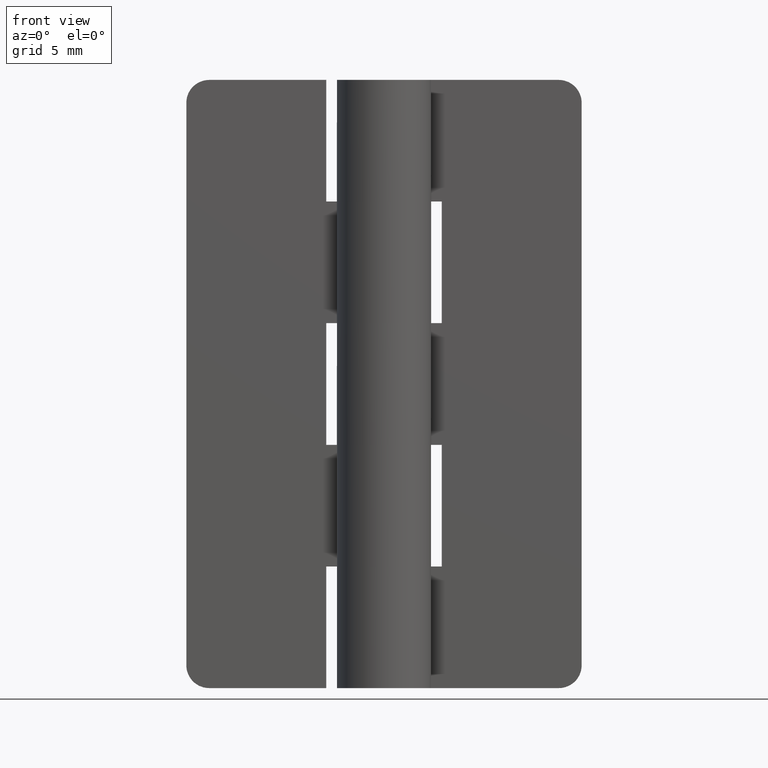
[diagram: clean part render]
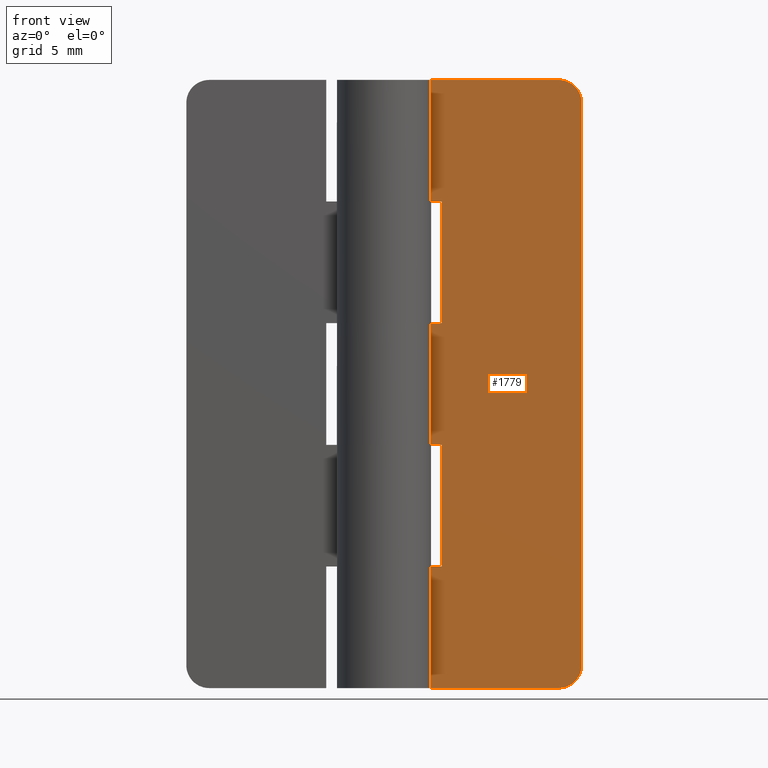
[diagram: same view with one face highlighted and labeled with its STEP entity id]
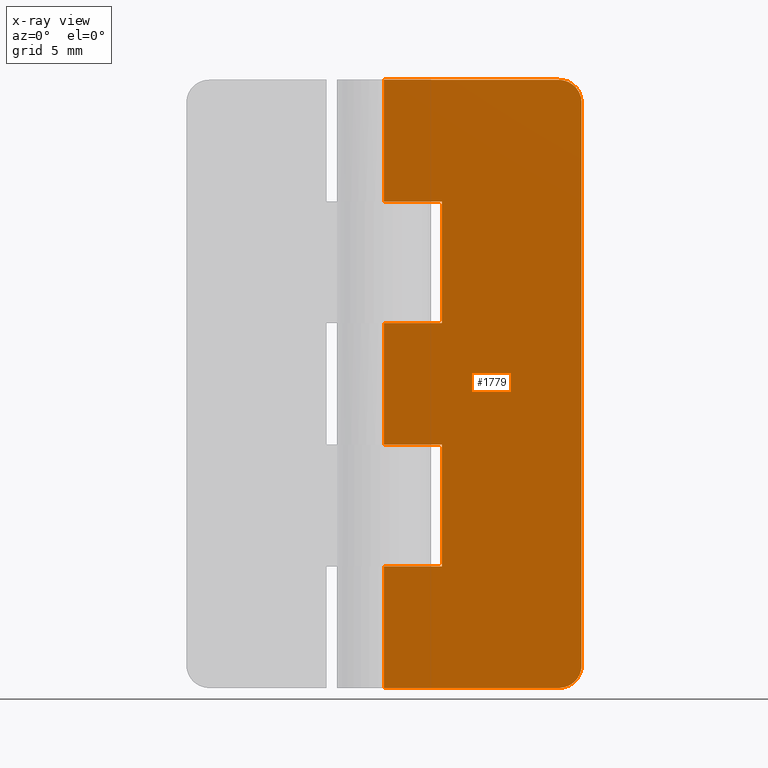
[diagram: x-ray of the same camera — body ghosted, the highlighted face saturated]
A machine part, front view. The second image highlights one B-rep face of the part: STEP entity #1779.
The next image is the same camera in x-ray: the body ghosted, the highlighted face saturated — about 0% of this face is hidden behind the body in this view.
In plain terms, the highlighted face is a freeform B-spline surface patch.
Its self-contained STEP definition (entity closure, byte-faithful):
#934=CARTESIAN_POINT('',(11.500000000000000,1.500000000000000,40.0));
#935=VERTEX_POINT('',#934);
#941=CARTESIAN_POINT('',(13.0,1.500000000000000,38.500000000000000));
#942=VERTEX_POINT('',#941);
#943=CARTESIAN_POINT('',(13.0,1.500000000000000,38.500000000000000));
#944=CARTESIAN_POINT('',(13.000000000000002,1.500000000000000,39.999999999999993));
#945=CARTESIAN_POINT('',(11.500000000000000,1.500000000000000,40.0));
#953=(BOUNDED_CURVE()B_SPLINE_CURVE(2,(#943,#944,#945),.UNSPECIFIED.,.F.,.U.)CURVE()GEOMETRIC_REPRESENTATION_ITEM()QUASI_UNIFORM_CURVE()RATIONAL_B_SPLINE_CURVE((1.0,0.707106781186548,1.0))REPRESENTATION_ITEM(''));
#954=EDGE_CURVE('',#942,#935,#953,.T.);
#995=CARTESIAN_POINT('',(13.0,1.500000000000000,1.499999999999946));
#996=VERTEX_POINT('',#995);
#1002=CARTESIAN_POINT('',(11.500000000000000,1.500000000000000,0.0));
#1003=VERTEX_POINT('',#1002);
#1004=CARTESIAN_POINT('',(11.500000000000000,1.500000000000000,0.0));
#1005=CARTESIAN_POINT('',(13.000000000000002,1.500000000000000,0.0));
#1006=CARTESIAN_POINT('',(13.0,1.500000000000000,1.499999999999946));
#1014=(BOUNDED_CURVE()B_SPLINE_CURVE(2,(#1004,#1005,#1006),.UNSPECIFIED.,.F.,.U.)CURVE()GEOMETRIC_REPRESENTATION_ITEM()QUASI_UNIFORM_CURVE()RATIONAL_B_SPLINE_CURVE((1.0,0.707106781186548,1.0))REPRESENTATION_ITEM(''));
#1015=EDGE_CURVE('',#1003,#996,#1014,.T.);
#1060=CARTESIAN_POINT('',(0.0,1.500000000000000,24.0));
#1061=VERTEX_POINT('',#1060);
#1081=CARTESIAN_POINT('',(3.800004000000000,1.499999999999946,24.0));
#1082=VERTEX_POINT('',#1081);
#1083=CARTESIAN_POINT('',(3.800004000000000,1.499999999999946,24.0));
#1084=CARTESIAN_POINT('',(0.0,1.500000000000000,24.0));
#1085=QUASI_UNIFORM_CURVE('',1,(#1083,#1084),.UNSPECIFIED.,.F.,.U.);
#1086=EDGE_CURVE('',#1082,#1061,#1085,.T.);
#1115=CARTESIAN_POINT('',(3.800004000000000,1.499999999999946,32.0));
#1116=VERTEX_POINT('',#1115);
#1130=CARTESIAN_POINT('',(3.800004000000000,1.499999999999946,32.0));
#1131=CARTESIAN_POINT('',(3.800004000000000,1.499999999999946,24.0));
#1132=QUASI_UNIFORM_CURVE('',1,(#1130,#1131),.UNSPECIFIED.,.F.,.U.);
#1133=EDGE_CURVE('',#1116,#1082,#1132,.T.);
#1158=CARTESIAN_POINT('',(0.0,1.500000000000000,32.0));
#1159=VERTEX_POINT('',#1158);
#1160=CARTESIAN_POINT('',(0.0,1.500000000000000,32.0));
#1161=CARTESIAN_POINT('',(3.800004000000000,1.499999999999946,32.0));
#1162=QUASI_UNIFORM_CURVE('',1,(#1160,#1161),.UNSPECIFIED.,.F.,.U.);
#1163=EDGE_CURVE('',#1159,#1116,#1162,.T.);
#1236=CARTESIAN_POINT('',(3.800004000000000,1.499999999999946,16.0));
#1237=VERTEX_POINT('',#1236);
#1243=CARTESIAN_POINT('',(0.0,1.500000000000000,16.0));
#1244=VERTEX_POINT('',#1243);
#1245=CARTESIAN_POINT('',(0.0,1.500000000000000,16.0));
#1246=CARTESIAN_POINT('',(3.800004000000000,1.499999999999946,16.0));
#1247=QUASI_UNIFORM_CURVE('',1,(#1245,#1246),.UNSPECIFIED.,.F.,.U.);
#1248=EDGE_CURVE('',#1244,#1237,#1247,.T.);
#1313=CARTESIAN_POINT('',(3.800004000000000,1.499999999999946,7.999999999999900));
#1314=VERTEX_POINT('',#1313);
#1320=CARTESIAN_POINT('',(3.800004000000000,1.499999999999946,16.0));
#1321=CARTESIAN_POINT('',(3.800004000000000,1.499999999999946,7.999999999999900));
#1322=QUASI_UNIFORM_CURVE('',1,(#1320,#1321),.UNSPECIFIED.,.F.,.U.);
#1323=EDGE_CURVE('',#1237,#1314,#1322,.T.);
#1363=CARTESIAN_POINT('',(0.0,1.500000000000000,7.999999999999900));
#1364=VERTEX_POINT('',#1363);
#1384=CARTESIAN_POINT('',(3.800004000000000,1.499999999999946,7.999999999999900));
#1385=CARTESIAN_POINT('',(0.0,1.500000000000000,7.999999999999900));
#1386=QUASI_UNIFORM_CURVE('',1,(#1384,#1385),.UNSPECIFIED.,.F.,.U.);
#1387=EDGE_CURVE('',#1314,#1364,#1386,.T.);
#1418=CARTESIAN_POINT('',(0.0,1.500000000000000,0.0));
#1419=VERTEX_POINT('',#1418);
#1420=CARTESIAN_POINT('',(11.500000000000000,1.500000000000000,0.0));
#1421=CARTESIAN_POINT('',(0.0,1.500000000000000,0.0));
#1422=QUASI_UNIFORM_CURVE('',1,(#1420,#1421),.UNSPECIFIED.,.F.,.U.);
#1423=EDGE_CURVE('',#1003,#1419,#1422,.T.);
#1480=CARTESIAN_POINT('',(0.0,1.500000000000000,40.0));
#1481=VERTEX_POINT('',#1480);
#1482=CARTESIAN_POINT('',(11.500000000000000,1.500000000000000,40.0));
#1483=CARTESIAN_POINT('',(0.0,1.500000000000000,40.0));
#1484=QUASI_UNIFORM_CURVE('',1,(#1482,#1483),.UNSPECIFIED.,.F.,.U.);
#1485=EDGE_CURVE('',#935,#1481,#1484,.T.);
#1550=CARTESIAN_POINT('',(13.0,1.500000000000000,38.500000000000000));
#1551=CARTESIAN_POINT('',(13.0,1.500000000000000,1.499999999999946));
#1552=QUASI_UNIFORM_CURVE('',1,(#1550,#1551),.UNSPECIFIED.,.F.,.U.);
#1553=EDGE_CURVE('',#942,#996,#1552,.T.);
#1610=CARTESIAN_POINT('',(0.0,1.500000000000000,7.999999999999900));
#1611=CARTESIAN_POINT('',(0.0,1.500000000000000,0.0));
#1612=QUASI_UNIFORM_CURVE('',1,(#1610,#1611),.UNSPECIFIED.,.F.,.U.);
#1613=EDGE_CURVE('',#1364,#1419,#1612,.T.);
#1717=CARTESIAN_POINT('',(0.0,1.500000000000000,24.0));
#1718=CARTESIAN_POINT('',(0.0,1.500000000000000,16.0));
#1719=QUASI_UNIFORM_CURVE('',1,(#1717,#1718),.UNSPECIFIED.,.F.,.U.);
#1720=EDGE_CURVE('',#1061,#1244,#1719,.T.);
#1748=CARTESIAN_POINT('',(0.0,1.500000000000000,40.0));
#1749=CARTESIAN_POINT('',(0.0,1.500000000000000,32.0));
#1750=QUASI_UNIFORM_CURVE('',1,(#1748,#1749),.UNSPECIFIED.,.F.,.U.);
#1751=EDGE_CURVE('',#1481,#1159,#1750,.T.);
#1758=CARTESIAN_POINT('',(-0.649349974803477,1.500000000000000,41.997999922472239));
#1759=CARTESIAN_POINT('',(-0.649349974803477,1.500000000000000,-1.998000995355844));
#1760=CARTESIAN_POINT('',(13.649350323490649,1.500000000000000,41.997999922472239));
#1761=CARTESIAN_POINT('',(13.649350323490649,1.500000000000000,-1.998000995355844));
#1762=B_SPLINE_SURFACE_WITH_KNOTS('',1,1,((#1758,#1760),(#1759,#1761)),.UNSPECIFIED.,.F.,.F.,.U.,(2,2),(2,2),(0.0,43.996000917828077),(0.0,14.298700298294129),.UNSPECIFIED.);
#1763=ORIENTED_EDGE('',*,*,#1423,.F.);
#1764=ORIENTED_EDGE('',*,*,#1015,.T.);
#1765=ORIENTED_EDGE('',*,*,#1553,.F.);
#1766=ORIENTED_EDGE('',*,*,#954,.T.);
#1767=ORIENTED_EDGE('',*,*,#1485,.T.);
#1768=ORIENTED_EDGE('',*,*,#1751,.T.);
#1769=ORIENTED_EDGE('',*,*,#1163,.T.);
#1770=ORIENTED_EDGE('',*,*,#1133,.T.);
#1771=ORIENTED_EDGE('',*,*,#1086,.T.);
#1772=ORIENTED_EDGE('',*,*,#1720,.T.);
#1773=ORIENTED_EDGE('',*,*,#1248,.T.);
#1774=ORIENTED_EDGE('',*,*,#1323,.T.);
#1775=ORIENTED_EDGE('',*,*,#1387,.T.);
#1776=ORIENTED_EDGE('',*,*,#1613,.T.);
#1777=EDGE_LOOP('',(#1763,#1764,#1765,#1766,#1767,#1768,#1769,#1770,#1771,#1772,#1773,#1774,#1775,#1776));
#1778=FACE_OUTER_BOUND('',#1777,.T.);
#1779=ADVANCED_FACE('',(#1778),#1762,.T.);